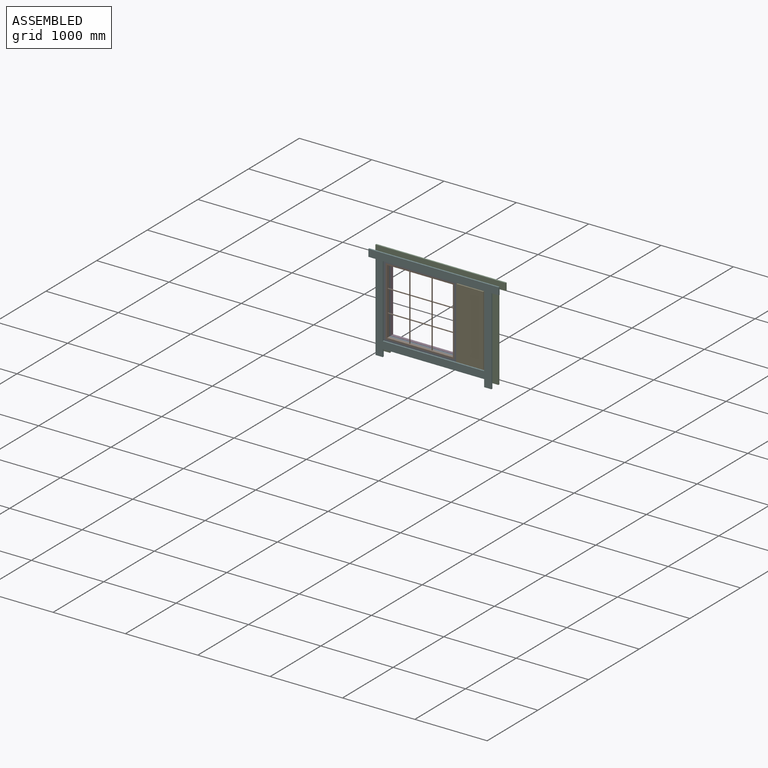
[diagram: assembled view]
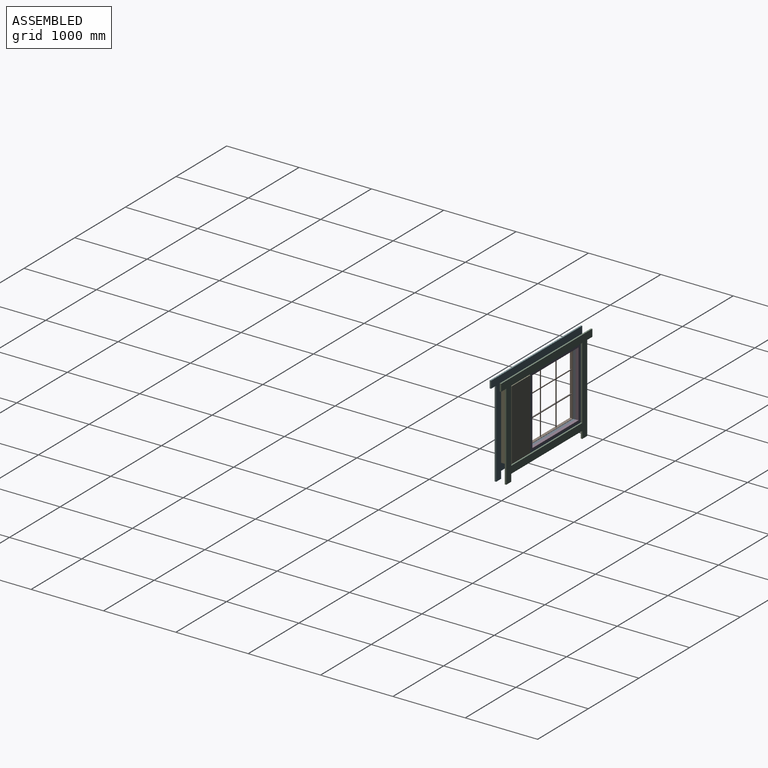
[diagram: assembled view, second angle]
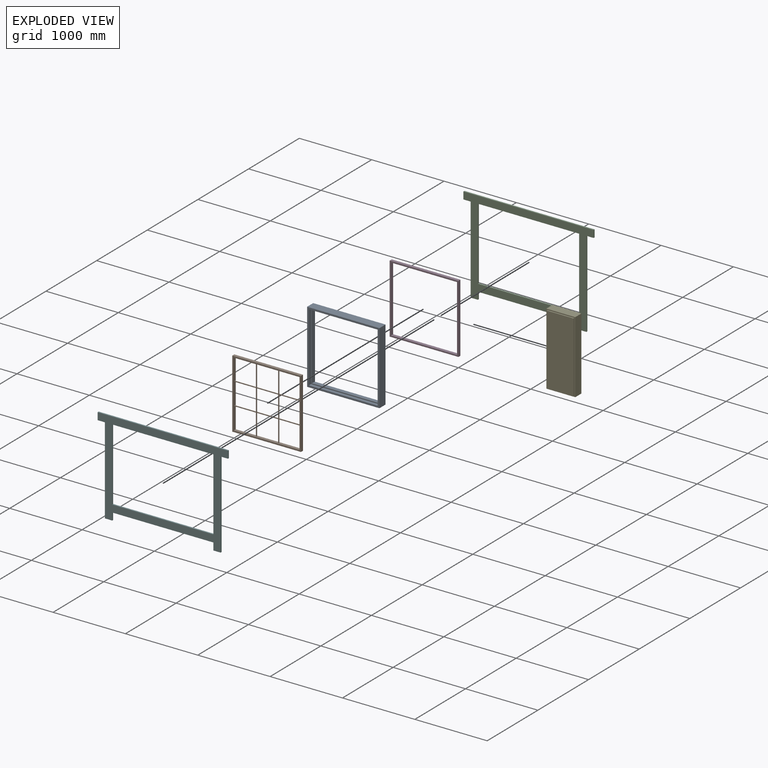
[diagram: exploded view]
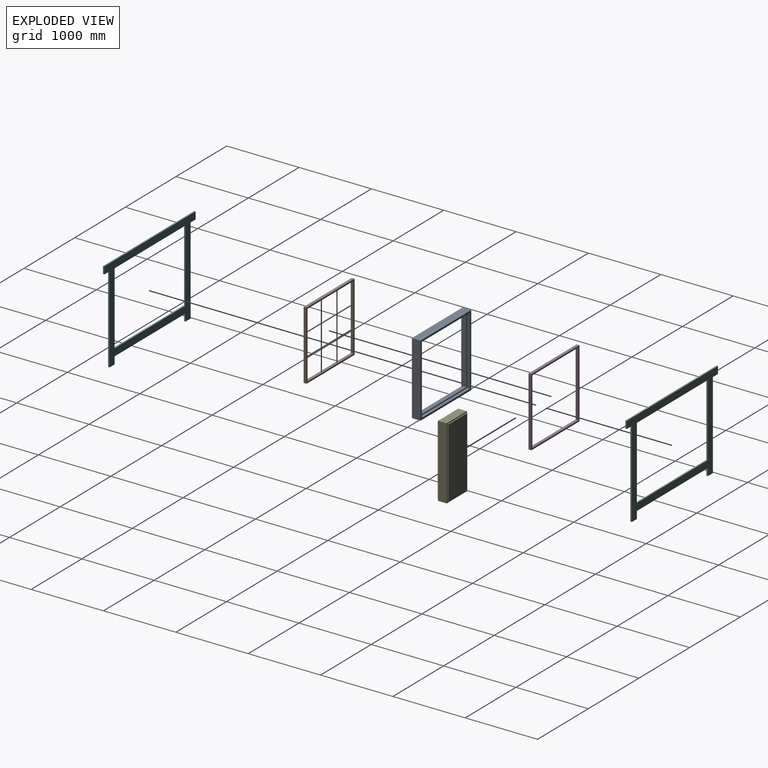
[diagram: exploded view, second angle]
ASSEMBLY  parts=6 mates=5
PART A: 20 faces, bbox 1000x120x1000 mm
  f0: plane 950x40mm, normal (-1,0,0), area 38000mm2, adj f8,f10,f13,f19
  f1: plane 950x40mm, normal (0,0,1), area 38000mm2, adj f7,f9,f12,f18
  f2: plane 950x40mm, normal (1,0,0), area 38000mm2, adj f8,f10,f13,f19
  f3: plane 950x40mm, normal (0,0,-1), area 38000mm2, adj f7,f9,f12,f18
  f4: plane 1000x120mm, normal (0,0,-1), area 120000mm2, adj f5,f11,f12,f13
  f5: plane 1000x120mm, normal (1,0,0), area 120000mm2, adj f4,f6,f12,f13
  f6: plane 1000x120mm, normal (0,0,1), area 120000mm2, adj f5,f11,f12,f13
  f7: plane 950x40mm, normal (-1,0,0), area 38000mm2, adj f1,f3,f12,f18
  f8: plane 950x40mm, normal (0,0,1), area 38000mm2, adj f0,f2,f13,f19
  f9: plane 950x40mm, normal (1,0,0), area 38000mm2, adj f1,f3,f12,f18
  f10: plane 950x40mm, normal (0,0,-1), area 38000mm2, adj f0,f2,f13,f19
  f11: plane 1000x120mm, normal (-1,0,0), area 120000mm2, adj f4,f6,f12,f13
  f12: plane 1000x1000mm, normal (0,-1,0), area 97500mm2, adj f1,f3,f4,f5,f6,f7,f9,f11
  f13: plane 1000x1000mm, normal (0,1,0), area 97500mm2, adj f0,f2,f4,f5,f6,f8,f10,f11
  f14: plane 920x40mm, normal (-1,0,0), area 36800mm2, adj f15,f17,f18,f19
  f15: plane 922x40mm, normal (0,0,1), area 36880mm2, adj f14,f16,f18,f19
  f16: plane 920x40mm, normal (1,0,0), area 36800mm2, adj f15,f17,f18,f19
  f17: plane 922x40mm, normal (0,0,-1), area 36880mm2, adj f14,f16,f18,f19
  f18: plane 950x950mm, normal (0,-1,0), area 54260mm2, adj f1,f3,f7,f9,f14,f15,f16,f17
  f19: plane 950x950mm, normal (0,1,0), area 54260mm2, adj f0,f2,f8,f10,f14,f15,f16,f17
PART B: 36 faces, bbox 950x40x950 mm
  f0: plane 910x40mm, normal (1,0,0), area 36200mm2, adj f5,f6,f8,f9,f20,f21,f23,f24
  f1: plane 910x40mm, normal (-1,0,0), area 36200mm2, adj f5,f6,f8,f9,f10,f11,f13,f14
  f2: plane 950x40mm, normal (0,0,1), area 38000mm2, adj f3,f7,f8,f9
  f3: plane 950x40mm, normal (-1,0,0), area 38000mm2, adj f2,f4,f8,f9
  f4: plane 950x40mm, normal (0,0,-1), area 38000mm2, adj f3,f7,f8,f9
  f5: plane 910x40mm, normal (0,0,-1), area 36200mm2, adj f0,f1,f8,f9,f15,f16,f18,f19
  f6: plane 910x40mm, normal (0,0,1), area 36200mm2, adj f0,f1,f8,f9,f25,f26,f28,f33
  f7: plane 950x40mm, normal (1,0,0), area 38000mm2, adj f2,f4,f8,f9
  f8: plane 950x950mm, normal (0,-1,0), area 74400mm2, adj f0,f1,f2,f3,f4,f5,f6,f7
  f9: plane 950x950mm, normal (0,1,0), area 74400mm2, adj f0,f1,f2,f3,f4,f5,f6,f7
  f10: plane 296.67x10mm, normal (0,0,-1), area 2966.7mm2, adj f1,f33,f34,f35
  f11: plane 296.67x10mm, normal (0,0,1), area 2966.7mm2, adj f1,f12,f34,f35
  f12: plane 296.67x10mm, normal (1,0,0), area 2966.7mm2, adj f11,f13,f34,f35
  f13: plane 296.67x10mm, normal (0,0,-1), area 2966.7mm2, adj f1,f12,f34,f35
  f14: plane 296.67x10mm, normal (0,0,1), area 2966.7mm2, adj f1,f15,f34,f35
  f15: plane 296.67x10mm, normal (1,0,0), area 2966.7mm2, adj f5,f14,f34,f35
  f16: plane 296.67x10mm, normal (-1,0,0), area 2966.7mm2, adj f5,f17,f34,f35
  f17: plane 296.67x10mm, normal (0,0,1), area 2966.7mm2, adj f16,f18,f34,f35
  f18: plane 296.67x10mm, normal (1,0,0), area 2966.7mm2, adj f5,f17,f34,f35
  f19: plane 296.67x10mm, normal (-1,0,0), area 2966.7mm2, adj f5,f20,f34,f35
  f20: plane 296.67x10mm, normal (0,0,1), area 2966.7mm2, adj f0,f19,f34,f35
  f21: plane 296.67x10mm, normal (0,0,-1), area 2966.7mm2, adj f0,f22,f34,f35
  f22: plane 296.67x10mm, normal (-1,0,0), area 2966.7mm2, adj f21,f23,f34,f35
  f23: plane 296.67x10mm, normal (0,0,1), area 2966.7mm2, adj f0,f22,f34,f35
  f24: plane 296.67x10mm, normal (0,0,-1), area 2966.7mm2, adj f0,f25,f34,f35
  f25: plane 296.67x10mm, normal (-1,0,0), area 2966.7mm2, adj f6,f24,f34,f35
  f26: plane 296.67x10mm, normal (1,0,0), area 2966.7mm2, adj f6,f27,f34,f35
  f27: plane 296.67x10mm, normal (0,0,-1), area 2966.7mm2, adj f26,f28,f34,f35
  f28: plane 296.67x10mm, normal (-1,0,0), area 2966.7mm2, adj f6,f27,f34,f35
  f29: plane 296.67x10mm, normal (1,0,0), area 2966.7mm2, adj f30,f32,f34,f35
  f30: plane 296.67x10mm, normal (0,0,-1), area 2966.7mm2, adj f29,f31,f34,f35
  f31: plane 296.67x10mm, normal (-1,0,0), area 2966.7mm2, adj f30,f32,f34,f35
  f32: plane 296.67x10mm, normal (0,0,1), area 2966.7mm2, adj f29,f31,f34,f35
  f33: plane 296.67x10mm, normal (1,0,0), area 2966.7mm2, adj f6,f10,f34,f35
  f34: plane 910x910mm, normal (0,-1,0), area 36000mm2, adj f0,f1,f5,f6,f10,f11,f12,f13
  f35: plane 910x910mm, normal (0,1,0), area 36000mm2, adj f0,f1,f5,f6,f10,f11,f12,f13
PART C: 18 faces, bbox 1800x20x1300 mm
  f0: plane 1400x20mm, normal (0,0,-1), area 28000mm2, adj f1,f15,f16,f17
  f1: plane 1000x20mm, normal (-1,0,0), area 20000mm2, adj f0,f2,f16,f17
  f2: plane 1400x20mm, normal (0,0,1), area 28000mm2, adj f1,f15,f16,f17
  f3: plane 1800x20mm, normal (0,0,1), area 36000mm2, adj f4,f14,f16,f17
  f4: plane 100x20mm, normal (-1,0,0), area 2000mm2, adj f3,f5,f16,f17
  f5: plane 100x20mm, normal (0,0,-1), area 2000mm2, adj f4,f6,f16,f17
  f6: plane 1200x20mm, normal (-1,0,0), area 24000mm2, adj f5,f7,f16,f17
  f7: plane 100x20mm, normal (0,0,-1), area 2000mm2, adj f6,f8,f16,f17
  f8: plane 100x20mm, normal (1,0,0), area 2000mm2, adj f7,f9,f16,f17
  f9: plane 1400x20mm, normal (0,0,-1), area 28000mm2, adj f8,f10,f16,f17
  f10: plane 100x20mm, normal (-1,0,0), area 2000mm2, adj f9,f11,f16,f17
  f11: plane 100x20mm, normal (0,0,-1), area 2000mm2, adj f10,f12,f16,f17
  f12: plane 1200x20mm, normal (1,0,0), area 24000mm2, adj f11,f13,f16,f17
  f13: plane 100x20mm, normal (0,0,-1), area 2000mm2, adj f12,f14,f16,f17
  f14: plane 100x20mm, normal (1,0,0), area 2000mm2, adj f3,f13,f16,f17
  f15: plane 1000x20mm, normal (1,0,0), area 20000mm2, adj f0,f2,f16,f17
  f16: plane 1800x1300mm, normal (0,-1,0), area 560000mm2, adj f0,f1,f2,f3,f4,f5,f6,f7
  f17: plane 1800x1300mm, normal (0,1,0), area 560000mm2, adj f0,f1,f2,f3,f4,f5,f6,f7
PART D: 10 faces, bbox 950x40x950 mm
  f0: plane 950x40mm, normal (0,0,1), area 38000mm2, adj f1,f7,f8,f9
  f1: plane 950x40mm, normal (-1,0,0), area 38000mm2, adj f0,f2,f8,f9
  f2: plane 950x40mm, normal (0,0,-1), area 38000mm2, adj f1,f7,f8,f9
  f3: plane 910x40mm, normal (1,0,0), area 36400mm2, adj f4,f6,f8,f9
  f4: plane 910x40mm, normal (0,0,-1), area 36400mm2, adj f3,f5,f8,f9
  f5: plane 910x40mm, normal (-1,0,0), area 36400mm2, adj f4,f6,f8,f9
  f6: plane 910x40mm, normal (0,0,1), area 36400mm2, adj f3,f5,f8,f9
  f7: plane 950x40mm, normal (1,0,0), area 38000mm2, adj f0,f2,f8,f9
  f8: plane 950x950mm, normal (0,-1,0), area 74400mm2, adj f0,f1,f2,f3,f4,f5,f6,f7
  f9: plane 950x950mm, normal (0,1,0), area 74400mm2, adj f0,f1,f2,f3,f4,f5,f6,f7
PART E: 16 faces, bbox 400x150x1000 mm
  f0: plane 1000x400mm, normal (0,-1,0), area 41100mm2, adj f1,f2,f3,f4,f6,f7,f8,f9
  f1: plane 400x120mm, normal (0,0,-1), area 48000mm2, adj f0,f2,f4,f5
  f2: plane 1000x120mm, normal (1,0,0), area 120000mm2, adj f0,f1,f3,f5
  f3: plane 400x120mm, normal (0,0,1), area 48000mm2, adj f0,f2,f4,f5
  f4: plane 1000x120mm, normal (-1,0,0), area 120000mm2, adj f0,f1,f3,f5
  f5: plane 1000x400mm, normal (0,1,0), area 41100mm2, adj f1,f2,f3,f4,f11,f12,f13,f14
  f6: plane 370x15mm, normal (0,0,1), area 5550mm2, adj f0,f7,f9,f10
  f7: plane 970x15mm, normal (-1,0,0), area 14550mm2, adj f0,f6,f8,f10
  f8: plane 370x15mm, normal (0,0,-1), area 5550mm2, adj f0,f7,f9,f10
  f9: plane 970x15mm, normal (1,0,0), area 14550mm2, adj f0,f6,f8,f10
  f10: plane 970x370mm, normal (0,-1,0), area 358900mm2, adj f6,f7,f8,f9
  f11: plane 370x15mm, normal (0,0,1), area 5550mm2, adj f5,f12,f14,f15
  f12: plane 970x15mm, normal (1,0,0), area 14550mm2, adj f5,f11,f13,f15
  f13: plane 370x15mm, normal (0,0,-1), area 5550mm2, adj f5,f12,f14,f15
  f14: plane 970x15mm, normal (-1,0,0), area 14550mm2, adj f5,f11,f13,f15
  f15: plane 970x370mm, normal (0,1,0), area 358900mm2, adj f11,f12,f13,f14
PART F: same geometry as C
PLACE A t=(-321.05,-239.17,69.95)mm fixed
PLACE B t=(-321.05,-279.17,69.95)mm
PLACE C t=(-121.05,-159.17,69.95)mm
PLACE D t=(-321.05,-199.17,69.95)mm
PLACE E rot(axis=(0,1,0),180deg) t=(378.95,-239.17,69.95)mm
PLACE F t=(-121.05,-299.17,69.95)mm
MATE planar A.f12 <-> F.f17  axis (0,-1,0) through (-821.05,-299.17,569.95)mm
MATE planar A.f13 <-> C.f16  axis (0,1,0) through (-821.05,-179.17,569.95)mm
MATE planar D.f9 <-> A.f13  axis (0,1,0) through (153.95,-179.17,-405.05)mm
MATE planar A.f5 <-> E.f2  axis (1,0,0) through (178.95,-239.17,69.95)mm
MATE planar B.f8 <-> A.f12  axis (0,-1,0) through (-796.05,-299.17,-405.05)mm
